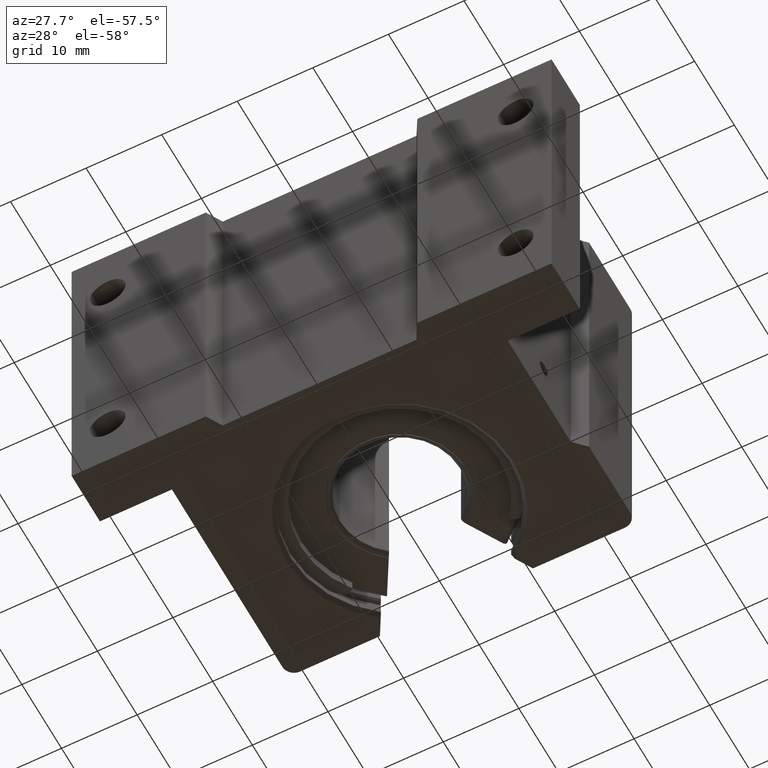
[diagram: clean part render]
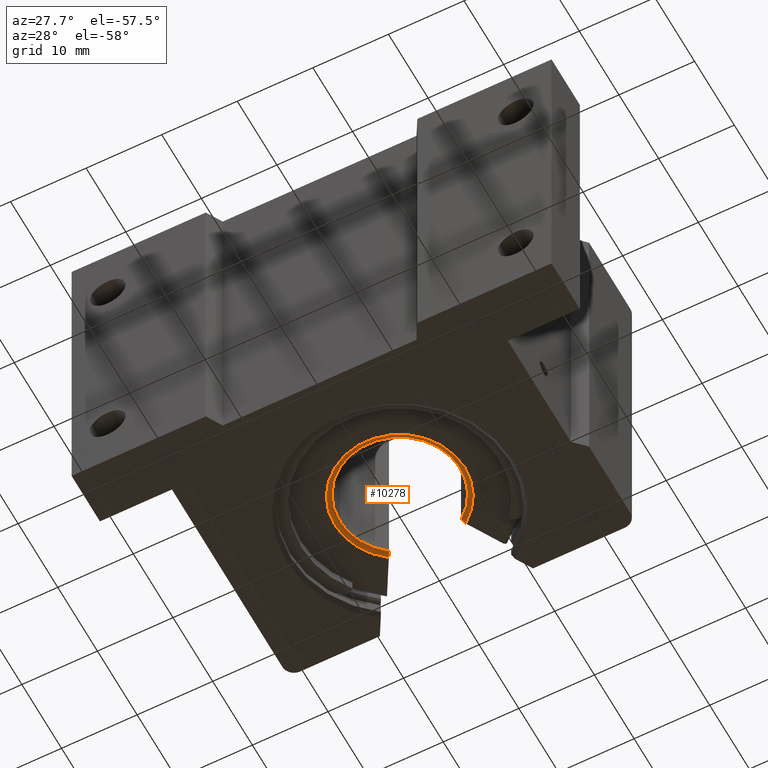
[diagram: same view with one face highlighted and labeled with its STEP entity id]
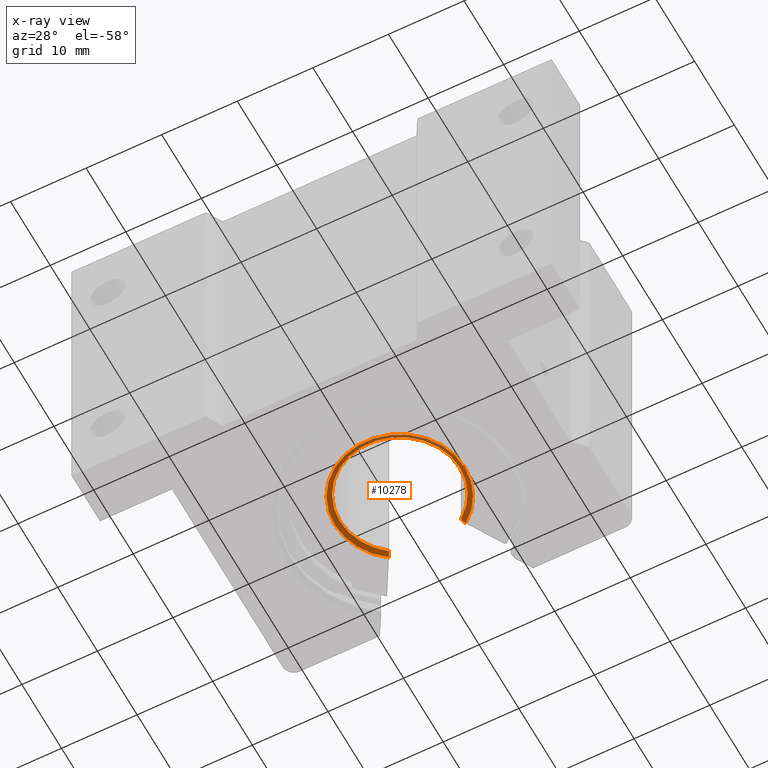
[diagram: x-ray of the same camera — body ghosted, the highlighted face saturated]
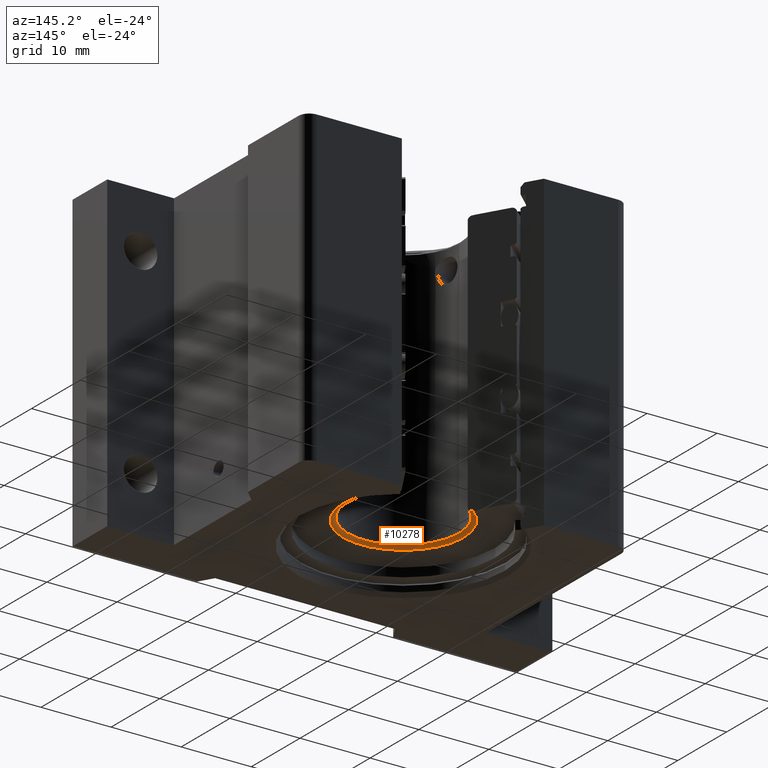
[diagram: same view with one face highlighted and labeled with its STEP entity id]
A machine part, auxiliary view. The second image highlights one B-rep face of the part: STEP entity #10278.
The next image is the same camera in x-ray: the body ghosted, the highlighted face saturated — about 0% of this face is hidden behind the body in this view.
A second angle (auxiliary view) of the same face is appended — the face is thin or edge-on in the first view.
In plain terms, the highlighted toroidal blend (fillet) surface has major radius 8.6163 mm and minor (blend) radius 0.762 mm.
Its self-contained STEP definition (entity closure, byte-faithful):
#240 = ORIENTED_EDGE ( 'NONE', *, *, #6573, .T. ) ;
#361 = ORIENTED_EDGE ( 'NONE', *, *, #2693, .F. ) ;
#465 = CARTESIAN_POINT ( 'NONE',  ( 0.1889203895515292053, 0.2530536836429492231, -0.7351662230294605527 ) ) ;
#505 = CARTESIAN_POINT ( 'NONE',  ( 0.1874999999999999722, 0.2505934967731605068, -0.7307736875482689909 ) ) ;
#627 = B_SPLINE_CURVE_WITH_KNOTS ( 'NONE', 3,
 ( #6557, #8244, #5628, #10850, #6521, #465, #9975, #505 ),
 .UNSPECIFIED., .F., .F.,
 ( 4, 2, 2, 4 ),
 ( 2.277391148309387011E-07, 0.0003970668161019302389, 0.0005954863545954820975, 0.0007939058930890338477 ),
 .UNSPECIFIED. ) ;
#783 = DIRECTION ( 'NONE',  ( -0.0000000000000000000, -1.224646799147352714E-16, -1.000000000000000000 ) ) ;
#964 = CARTESIAN_POINT ( 'NONE',  ( 0.0000000000000000000, -7.196906724073754460E-17, -0.7462412383038781183 ) ) ;
#975 = CARTESIAN_POINT ( 'NONE',  ( -0.1990259073393738920, 0.2705569538882873215, -0.7461777922676955388 ) ) ;
#1031 = AXIS2_PLACEMENT_3D ( 'NONE', #10293, #2560, #8577 ) ;
#1506 = CIRCLE ( 'NONE', #2907, 0.3129750000000000032 ) ;
#1679 = CARTESIAN_POINT ( 'NONE',  ( -0.2003461468640649890, 0.2728436758232128945, -0.7462412383038781183 ) ) ;
#1867 = CARTESIAN_POINT ( 'NONE',  ( 0.2003461468640650167, 0.2728436758232128945, -0.7462412383038781183 ) ) ;
#2330 = ORIENTED_EDGE ( 'NONE', *, *, #9298, .T. ) ;
#2381 = ORIENTED_EDGE ( 'NONE', *, *, #3378, .T. ) ;
#2397 = TOROIDAL_SURFACE ( 'NONE', #6236, 0.3392250000000000543, 0.02999999999999998848 ) ;
#2445 = DIRECTION ( 'NONE',  ( 0.0000000000000000000, 1.224646799147352714E-16, 1.000000000000000000 ) ) ;
#2507 = CIRCLE ( 'NONE', #5469, 0.3385000000000000231 ) ;
#2560 = DIRECTION ( 'NONE',  ( -0.0000000000000000000, -1.224646799147352714E-16, -1.000000000000000000 ) ) ;
#2693 = EDGE_CURVE ( 'NONE', #8098, #7649, #9598, .T. ) ;
#2907 = AXIS2_PLACEMENT_3D ( 'NONE', #4681, #7344, #10771 ) ;
#3378 = EDGE_CURVE ( 'NONE', #8098, #9447, #1506, .T. ) ;
#3440 = CARTESIAN_POINT ( 'NONE',  ( -0.1874999999999999167, 0.2505934967731605623, -0.7307736875482778727 ) ) ;
#3556 = EDGE_CURVE ( 'NONE', #7956, #7334, #627, .T. ) ;
#3607 = CIRCLE ( 'NONE', #5298, 0.3385000000000000231 ) ;
#3777 = CARTESIAN_POINT ( 'NONE',  ( 0.0000000000000000000, -7.007483858838805250E-17, -0.7307736875482778727 ) ) ;
#3869 = VERTEX_POINT ( 'NONE', #8525 ) ;
#4355 = ORIENTED_EDGE ( 'NONE', *, *, #8916, .T. ) ;
#4681 = CARTESIAN_POINT ( 'NONE',  ( 0.0000000000000000000, -7.007483858838805250E-17, -0.7307736875482778727 ) ) ;
#4898 = ORIENTED_EDGE ( 'NONE', *, *, #3556, .F. ) ;
#5094 = CARTESIAN_POINT ( 'NONE',  ( -0.1940155853690803123, 0.2618788216734602159, -0.7432618688159996490 ) ) ;
#5298 = AXIS2_PLACEMENT_3D ( 'NONE', #964, #6194, #7997 ) ;
#5469 = AXIS2_PLACEMENT_3D ( 'NONE', #6833, #783, #6915 ) ;
#5628 = CARTESIAN_POINT ( 'NONE',  ( 0.1951247126839329160, 0.2637998865348474276, -0.7445973892237484071 ) ) ;
#6086 = CARTESIAN_POINT ( 'NONE',  ( -0.1977409822423569496, 0.2683313983363335709, -0.7457771688753566108 ) ) ;
#6194 = DIRECTION ( 'NONE',  ( -0.0000000000000000000, -1.224646799147352714E-16, -1.000000000000000000 ) ) ;
#6236 = AXIS2_PLACEMENT_3D ( 'NONE', #10848, #6660, #8421 ) ;
#6249 = CARTESIAN_POINT ( 'NONE',  ( 0.1874999999999999722, 0.2505934967731605068, -0.7307736875482689909 ) ) ;
#6263 = VERTEX_POINT ( 'NONE', #6562 ) ;
#6294 = EDGE_CURVE ( 'NONE', #9447, #3869, #7154, .T. ) ;
#6359 = CARTESIAN_POINT ( 'NONE',  ( -0.1874999999999999167, 0.2505934967731605623, -0.7307736875482778727 ) ) ;
#6521 = CARTESIAN_POINT ( 'NONE',  ( 0.1907328084254962530, 0.2561928852172569715, -0.7389117501011127631 ) ) ;
#6557 = CARTESIAN_POINT ( 'NONE',  ( 0.2003461468640650167, 0.2728436758232128945, -0.7462412383038781183 ) ) ;
#6562 = CARTESIAN_POINT ( 'NONE',  ( 0.3385000000000000231, 0.0000000000000000000, -0.7462412383038781183 ) ) ;
#6573 = EDGE_CURVE ( 'NONE', #9021, #7649, #3607, .T. ) ;
#6596 = CARTESIAN_POINT ( 'NONE',  ( 0.0000000000000000000, -7.007483858838805250E-17, -0.7307736875482778727 ) ) ;
#6660 = DIRECTION ( 'NONE',  ( 0.0000000000000000000, 1.224646799147352714E-16, 1.000000000000000000 ) ) ;
#6717 = FACE_OUTER_BOUND ( 'NONE', #7311, .T. ) ;
#6833 = CARTESIAN_POINT ( 'NONE',  ( 0.0000000000000000000, -7.196906724073754460E-17, -0.7462412383038781183 ) ) ;
#6836 = CARTESIAN_POINT ( 'NONE',  ( -0.1952389169351576026, 0.2639976941004088529, -0.7443287212032394518 ) ) ;
#6915 = DIRECTION ( 'NONE',  ( 0.0000000000000000000, 1.000000000000000000, -4.035225987687242279E-16 ) ) ;
#7026 = CIRCLE ( 'NONE', #1031, 0.3385000000000000231 ) ;
#7154 = CIRCLE ( 'NONE', #9398, 0.3129750000000000032 ) ;
#7311 = EDGE_LOOP ( 'NONE', ( #361, #2381, #7911, #4355, #4898, #2330, #8428, #240 ) ) ;
#7334 = VERTEX_POINT ( 'NONE', #6249 ) ;
#7344 = DIRECTION ( 'NONE',  ( 0.0000000000000000000, 1.224646799147352714E-16, 1.000000000000000000 ) ) ;
#7347 = CIRCLE ( 'NONE', #7471, 0.3129750000000000032 ) ;
#7471 = AXIS2_PLACEMENT_3D ( 'NONE', #3777, #8922, #9888 ) ;
#7649 = VERTEX_POINT ( 'NONE', #9373 ) ;
#7780 = EDGE_CURVE ( 'NONE', #6263, #9021, #2507, .T. ) ;
#7911 = ORIENTED_EDGE ( 'NONE', *, *, #6294, .T. ) ;
#7956 = VERTEX_POINT ( 'NONE', #1867 ) ;
#7997 = DIRECTION ( 'NONE',  ( -8.881784197001252323E-16, 1.000000000000000000, -4.035225987687242279E-16 ) ) ;
#8067 = CARTESIAN_POINT ( 'NONE',  ( -0.3385000000000000231, 4.145429415113791288E-17, -0.7462412383038781183 ) ) ;
#8098 = VERTEX_POINT ( 'NONE', #6359 ) ;
#8244 = CARTESIAN_POINT ( 'NONE',  ( 0.1977056929550040087, 0.2682702754976754589, -0.7461143474396676467 ) ) ;
#8421 = DIRECTION ( 'NONE',  ( 0.0000000000000000000, 1.000000000000000000, -1.224646799147352468E-16 ) ) ;
#8428 = ORIENTED_EDGE ( 'NONE', *, *, #7780, .T. ) ;
#8525 = CARTESIAN_POINT ( 'NONE',  ( 0.3129750000000000032, -5.459328976215787263E-31, -0.7307736875482778727 ) ) ;
#8577 = DIRECTION ( 'NONE',  ( 0.0000000000000000000, 1.000000000000000000, -4.035225987687242279E-16 ) ) ;
#8877 = CARTESIAN_POINT ( 'NONE',  ( -0.3129750000000000032, 3.832838319631428317E-17, -0.7307736875482778727 ) ) ;
#8916 = EDGE_CURVE ( 'NONE', #3869, #7334, #7347, .T. ) ;
#8922 = DIRECTION ( 'NONE',  ( 0.0000000000000000000, 1.224646799147352714E-16, 1.000000000000000000 ) ) ;
#9021 = VERTEX_POINT ( 'NONE', #8067 ) ;
#9298 = EDGE_CURVE ( 'NONE', #7956, #6263, #7026, .T. ) ;
#9373 = CARTESIAN_POINT ( 'NONE',  ( -0.2003461468640649890, 0.2728436758232128945, -0.7462412383038781183 ) ) ;
#9398 = AXIS2_PLACEMENT_3D ( 'NONE', #6596, #2445, #10164 ) ;
#9447 = VERTEX_POINT ( 'NONE', #8877 ) ;
#9561 = CARTESIAN_POINT ( 'NONE',  ( -0.1906664938282702781, 0.2560780249655780771, -0.7392375786190304998 ) ) ;
#9598 = B_SPLINE_CURVE_WITH_KNOTS ( 'NONE', 3,
 ( #3440, #10324, #9561, #5094, #6836, #6086, #975, #1679 ),
 .UNSPECIFIED., .F., .F.,
 ( 4, 2, 2, 4 ),
 ( 4.679700766222123361E-07, 0.0003973221935628372826, 0.0005957493053059442810, 0.0007941764170490512795 ),
 .UNSPECIFIED. ) ;
#9888 = DIRECTION ( 'NONE',  ( 0.0000000000000000000, 1.000000000000000000, -4.364323018874132229E-16 ) ) ;
#9975 = CARTESIAN_POINT ( 'NONE',  ( 0.1881428536331672119, 0.2517069519276365352, -0.7330810956630020581 ) ) ;
#10164 = DIRECTION ( 'NONE',  ( 0.0000000000000000000, 1.000000000000000000, -4.364323018874132229E-16 ) ) ;
#10278 = ADVANCED_FACE ( 'NONE', ( #6717 ), #2397, .T. ) ;
#10293 = CARTESIAN_POINT ( 'NONE',  ( 0.0000000000000000000, -7.196906724073754460E-17, -0.7462412383038781183 ) ) ;
#10324 = CARTESIAN_POINT ( 'NONE',  ( -0.1887857233924383760, 0.2528204350133437806, -0.7353885616594887376 ) ) ;
#10771 = DIRECTION ( 'NONE',  ( 0.0000000000000000000, 1.000000000000000000, -4.364323018874132229E-16 ) ) ;
#10848 = CARTESIAN_POINT ( 'NONE',  ( 0.0000000000000000000, -6.829619984160658046E-17, -0.7162500000000000533 ) ) ;
#10850 = CARTESIAN_POINT ( 'NONE',  ( 0.1917775471626692041, 0.2580024257906757823, -0.7405712290550224841 ) ) ;